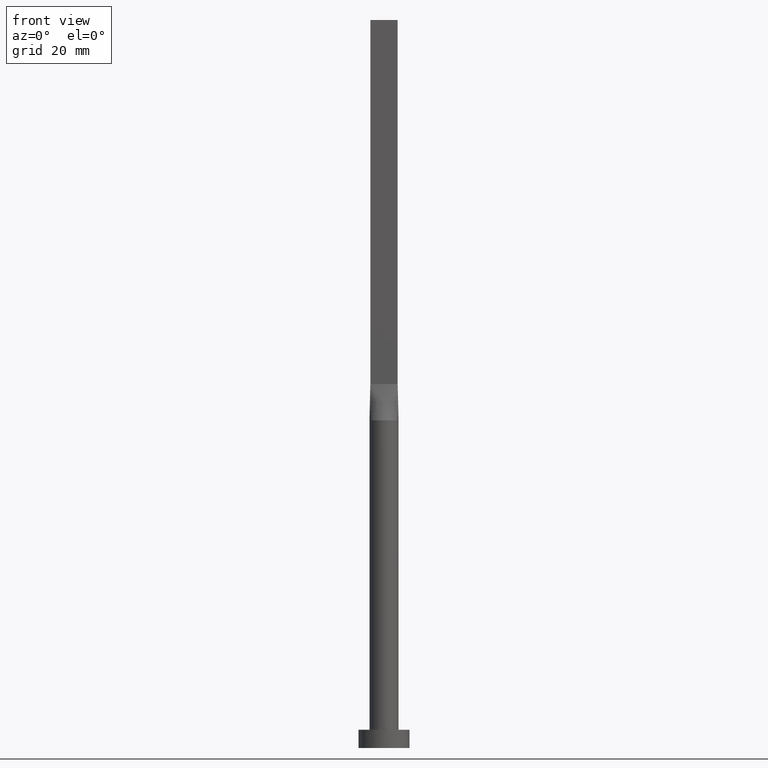
[diagram: clean part render]
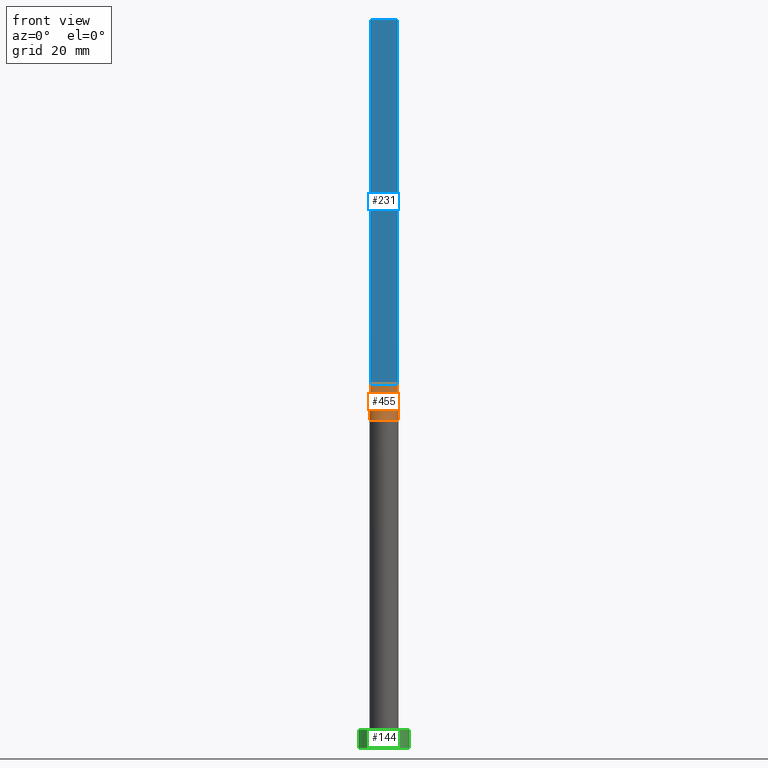
[diagram: same view with three faces highlighted in distinct colors, each labeled with its STEP entity id]
A machine part, front view with three faces highlighted in distinct colors.
Their STEP definitions:

[orange] entity #455 — the highlighted face is a freeform B-spline surface patch.
#1 = CARTESIAN_POINT ( 'NONE',  ( 1.562500000000001332, -0.9999999999999995559, 100.0000000000000000 ) ) ;
#5 = CARTESIAN_POINT ( 'NONE',  ( -0.6249999999999982236, -0.9999999999999993339, 100.0000000000000142 ) ) ;
#8 = CARTESIAN_POINT ( 'NONE',  ( 3.865244591400370577, -1.030732999276501527, 90.00000000000001421 ) ) ;
#28 = LINE ( 'NONE', #290, #60 ) ;
#40 = CIRCLE ( 'NONE', #415, 4.000000000000000000 ) ;
#42 = VERTEX_POINT ( 'NONE', #354 ) ;
#43 = CARTESIAN_POINT ( 'NONE',  ( -3.864939758404985604, -1.030650602241328206, 90.00000000000001421 ) ) ;
#45 = CARTESIAN_POINT ( 'NONE',  ( 1.250000000000001554, -0.9999999999999995559, 100.0000000000000000 ) ) ;
#54 = ORIENTED_EDGE ( 'NONE', *, *, #250, .T. ) ;
#60 = VECTOR ( 'NONE', #468, 1000.000000000000114 ) ;
#64 = VERTEX_POINT ( 'NONE', #8 ) ;
#68 = LINE ( 'NONE', #245, #480 ) ;
#69 = LINE ( 'NONE', #378, #305 ) ;
#83 = CARTESIAN_POINT ( 'NONE',  ( -2.499999999999998668, -0.9999999999999991118, 100.0000000000000000 ) ) ;
#87 = CARTESIAN_POINT ( 'NONE',  ( -3.750000000000000000, -0.9999999999999991118, 100.0000000000000000 ) ) ;
#96 = CARTESIAN_POINT ( 'NONE',  ( -0.3124999999999982236, -0.9999999999999993339, 100.0000000000000142 ) ) ;
#106 = B_SPLINE_SURFACE_WITH_KNOTS ( 'NONE', 3, 1, ( 
 ( #43, #87 ),
 ( #217, #488 ),
 ( #259, #388 ),
 ( #353, #83 ),
 ( #437, #529 ),
 ( #170, #127 ),
 ( #350, #124 ),
 ( #499, #5 ),
 ( #363, #96 ),
 ( #275, #411 ),
 ( #184, #460 ),
 ( #272, #45 ),
 ( #453, #1 ),
 ( #278, #539 ),
 ( #143, #413 ),
 ( #544, #321 ),
 ( #457, #402 ),
 ( #450, #181 ) ),
 .UNSPECIFIED., .F., .F., .F.,
 ( 4, 2, 2, 2, 2, 2, 2, 2, 4 ),
 ( 2, 2 ),
 ( 0.000000000000000000, 0.1250000000000000000, 0.2500000000000000000, 0.3750000000000000000, 0.5000000000000000000, 0.6250000000000000000, 0.7500000000000000000, 0.8750000000000000000, 1.000000000000000000 ),
 ( 0.000000000000000000, 1.000000000000000000 ),
 .UNSPECIFIED. ) ;
#124 = CARTESIAN_POINT ( 'NONE',  ( -1.249999999999998446, -0.9999999999999993339, 100.0000000000000142 ) ) ;
#127 = CARTESIAN_POINT ( 'NONE',  ( -1.562499999999998890, -0.9999999999999993339, 100.0000000000000142 ) ) ;
#143 = CARTESIAN_POINT ( 'NONE',  ( 3.267840578657194239, -2.338604872288699177, 90.00000000000000000 ) ) ;
#155 = CARTESIAN_POINT ( 'NONE',  ( 3.750000000000000000, -0.9999999999999997780, 100.0000000000000000 ) ) ;
#170 = CARTESIAN_POINT ( 'NONE',  ( -2.346407003458402141, -3.270103945996943651, 89.99999999999998579 ) ) ;
#180 = VERTEX_POINT ( 'NONE', #560 ) ;
#181 = CARTESIAN_POINT ( 'NONE',  ( 3.750000000000000000, -0.9999999999999997780, 100.0000000000000000 ) ) ;
#184 = CARTESIAN_POINT ( 'NONE',  ( 1.023074425454087555, -3.898373771260455811, 90.00000000000001421 ) ) ;
#187 = DIRECTION ( 'NONE',  ( 1.000000000000000000, 0.000000000000000000, 0.000000000000000000 ) ) ;
#197 = EDGE_LOOP ( 'NONE', ( #310, #362, #260, #54 ) ) ;
#217 = CARTESIAN_POINT ( 'NONE',  ( -3.781952206537765981, -1.341853921743402900, 89.99999999999998579 ) ) ;
#245 = CARTESIAN_POINT ( 'NONE',  ( -3.750000000000000000, -0.9999999999999991118, 100.0000000000000000 ) ) ;
#247 = DIRECTION ( 'NONE',  ( -0.01149316269309400701, -0.003064843384825017159, -0.9999292544707033548 ) ) ;
#248 = VERTEX_POINT ( 'NONE', #155 ) ;
#250 = EDGE_CURVE ( 'NONE', #180, #42, #69, .T. ) ;
#259 = CARTESIAN_POINT ( 'NONE',  ( -3.653499896451231521, -1.673258289339057514, 90.00000000000001421 ) ) ;
#260 = ORIENTED_EDGE ( 'NONE', *, *, #301, .F. ) ;
#272 = CARTESIAN_POINT ( 'NONE',  ( 1.940702937457743360, -3.532374760555930582, 90.00000000000001421 ) ) ;
#274 = EDGE_CURVE ( 'NONE', #64, #248, #28, .T. ) ;
#275 = CARTESIAN_POINT ( 'NONE',  ( 0.5121855420560003092, -3.999999999999999112, 90.00000000000001421 ) ) ;
#278 = CARTESIAN_POINT ( 'NONE',  ( 3.009488128496036641, -2.672487015486668671, 90.00000000000001421 ) ) ;
#290 = CARTESIAN_POINT ( 'NONE',  ( 3.807469879202492802, -1.015325301120664214, 95.00000000000000000 ) ) ;
#301 = EDGE_CURVE ( 'NONE', #180, #248, #68, .T. ) ;
#305 = VECTOR ( 'NONE', #247, 1000.000000000000114 ) ;
#310 = ORIENTED_EDGE ( 'NONE', *, *, #473, .T. ) ;
#321 = CARTESIAN_POINT ( 'NONE',  ( 3.125000000000000444, -0.9999999999999995559, 100.0000000000000000 ) ) ;
#324 = DIRECTION ( 'NONE',  ( 0.000000000000000000, 0.000000000000000000, 1.000000000000000000 ) ) ;
#350 = CARTESIAN_POINT ( 'NONE',  ( -1.940702937457744692, -3.532374760555929250, 90.00000000000001421 ) ) ;
#353 = CARTESIAN_POINT ( 'NONE',  ( -3.267840578657194239, -2.338604872288696956, 89.99999999999998579 ) ) ;
#354 = CARTESIAN_POINT ( 'NONE',  ( -3.865220763612065902, -1.030726602927787949, 90.00000000000001421 ) ) ;
#362 = ORIENTED_EDGE ( 'NONE', *, *, #274, .T. ) ;
#363 = CARTESIAN_POINT ( 'NONE',  ( -0.5121855420560018635, -4.000000000000000000, 90.00000000000002842 ) ) ;
#378 = CARTESIAN_POINT ( 'NONE',  ( -3.807469879202492802, -1.015325301120663548, 95.00000000000000000 ) ) ;
#388 = CARTESIAN_POINT ( 'NONE',  ( -3.124999999999999112, -0.9999999999999991118, 100.0000000000000000 ) ) ;
#402 = CARTESIAN_POINT ( 'NONE',  ( 3.437500000000000444, -0.9999999999999995559, 100.0000000000000000 ) ) ;
#407 = CARTESIAN_POINT ( 'NONE',  ( 0.000000000000000000, 0.000000000000000000, 90.00000000000001421 ) ) ;
#411 = CARTESIAN_POINT ( 'NONE',  ( 0.3125000000000018319, -0.9999999999999995559, 100.0000000000000142 ) ) ;
#413 = CARTESIAN_POINT ( 'NONE',  ( 2.500000000000000888, -0.9999999999999995559, 100.0000000000000000 ) ) ;
#415 = AXIS2_PLACEMENT_3D ( 'NONE', #407, #324, #187 ) ;
#426 = DIRECTION ( 'NONE',  ( 1.000000000000000000, -8.673617379884035472E-17, 0.000000000000000000 ) ) ;
#434 = FACE_OUTER_BOUND ( 'NONE', #197, .T. ) ;
#437 = CARTESIAN_POINT ( 'NONE',  ( -3.009488128496037529, -2.672487015486668227, 90.00000000000000000 ) ) ;
#450 = CARTESIAN_POINT ( 'NONE',  ( 3.864939758404985604, -1.030650602241328873, 90.00000000000001421 ) ) ;
#453 = CARTESIAN_POINT ( 'NONE',  ( 2.346407003458400364, -3.270103945996944095, 90.00000000000000000 ) ) ;
#455 = ADVANCED_FACE ( 'NONE', ( #434 ), #106, .T. ) ;
#457 = CARTESIAN_POINT ( 'NONE',  ( 3.781952206537765981, -1.341853921743404232, 90.00000000000001421 ) ) ;
#460 = CARTESIAN_POINT ( 'NONE',  ( 0.6250000000000017764, -0.9999999999999995559, 100.0000000000000000 ) ) ;
#468 = DIRECTION ( 'NONE',  ( -0.01149316269309400701, 0.003064843384825017159, 0.9999292544707033548 ) ) ;
#473 = EDGE_CURVE ( 'NONE', #42, #64, #40, .T. ) ;
#480 = VECTOR ( 'NONE', #426, 1000.000000000000000 ) ;
#488 = CARTESIAN_POINT ( 'NONE',  ( -3.437499999999999556, -0.9999999999999991118, 100.0000000000000000 ) ) ;
#499 = CARTESIAN_POINT ( 'NONE',  ( -1.023074425454088887, -3.898373771260456255, 90.00000000000001421 ) ) ;
#529 = CARTESIAN_POINT ( 'NONE',  ( -2.187499999999999112, -0.9999999999999993339, 100.0000000000000000 ) ) ;
#539 = CARTESIAN_POINT ( 'NONE',  ( 2.187500000000000888, -0.9999999999999995559, 100.0000000000000000 ) ) ;
#544 = CARTESIAN_POINT ( 'NONE',  ( 3.653499896451230633, -1.673258289339059068, 90.00000000000001421 ) ) ;
#560 = CARTESIAN_POINT ( 'NONE',  ( -3.750000000000000000, -0.9999999999999991118, 100.0000000000000000 ) ) ;

[blue] entity #231 — the highlighted planar face has unit normal (0, 1, -0).
#23 = DIRECTION ( 'NONE',  ( -0.000000000000000000, -0.000000000000000000, -1.000000000000000000 ) ) ;
#26 = DIRECTION ( 'NONE',  ( 8.673617379884035472E-17, 1.000000000000000000, -0.000000000000000000 ) ) ;
#44 = ORIENTED_EDGE ( 'NONE', *, *, #261, .T. ) ;
#68 = LINE ( 'NONE', #245, #480 ) ;
#84 = EDGE_LOOP ( 'NONE', ( #416, #119, #171, #44 ) ) ;
#105 = VECTOR ( 'NONE', #563, 1000.000000000000000 ) ;
#116 = VECTOR ( 'NONE', #346, 1000.000000000000000 ) ;
#119 = ORIENTED_EDGE ( 'NONE', *, *, #558, .F. ) ;
#155 = CARTESIAN_POINT ( 'NONE',  ( 3.750000000000000000, -0.9999999999999997780, 100.0000000000000000 ) ) ;
#171 = ORIENTED_EDGE ( 'NONE', *, *, #333, .F. ) ;
#180 = VERTEX_POINT ( 'NONE', #560 ) ;
#206 = LINE ( 'NONE', #239, #471 ) ;
#231 = ADVANCED_FACE ( 'NONE', ( #508 ), #330, .F. ) ;
#239 = CARTESIAN_POINT ( 'NONE',  ( -3.750000000000000000, -0.9999999999999991118, 200.0000000000000000 ) ) ;
#245 = CARTESIAN_POINT ( 'NONE',  ( -3.750000000000000000, -0.9999999999999991118, 100.0000000000000000 ) ) ;
#248 = VERTEX_POINT ( 'NONE', #155 ) ;
#261 = EDGE_CURVE ( 'NONE', #549, #180, #206, .T. ) ;
#301 = EDGE_CURVE ( 'NONE', #180, #248, #68, .T. ) ;
#330 = PLANE ( 'NONE',  #379 ) ;
#333 = EDGE_CURVE ( 'NONE', #549, #403, #390, .T. ) ;
#346 = DIRECTION ( 'NONE',  ( 1.000000000000000000, -8.673617379884035472E-17, 0.000000000000000000 ) ) ;
#375 = CARTESIAN_POINT ( 'NONE',  ( -3.750000000000000000, -0.9999999999999991118, 200.0000000000000000 ) ) ;
#379 = AXIS2_PLACEMENT_3D ( 'NONE', #562, #26, #512 ) ;
#390 = LINE ( 'NONE', #482, #116 ) ;
#403 = VERTEX_POINT ( 'NONE', #533 ) ;
#416 = ORIENTED_EDGE ( 'NONE', *, *, #301, .T. ) ;
#422 = CARTESIAN_POINT ( 'NONE',  ( 3.750000000000000000, -0.9999999999999997780, 200.0000000000000000 ) ) ;
#426 = DIRECTION ( 'NONE',  ( 1.000000000000000000, -8.673617379884035472E-17, 0.000000000000000000 ) ) ;
#471 = VECTOR ( 'NONE', #23, 1000.000000000000000 ) ;
#480 = VECTOR ( 'NONE', #426, 1000.000000000000000 ) ;
#482 = CARTESIAN_POINT ( 'NONE',  ( -3.750000000000000000, -0.9999999999999991118, 200.0000000000000000 ) ) ;
#508 = FACE_OUTER_BOUND ( 'NONE', #84, .T. ) ;
#511 = LINE ( 'NONE', #422, #105 ) ;
#512 = DIRECTION ( 'NONE',  ( -1.000000000000000000, 8.673617379884035472E-17, 0.000000000000000000 ) ) ;
#533 = CARTESIAN_POINT ( 'NONE',  ( 3.750000000000000000, -0.9999999999999997780, 200.0000000000000000 ) ) ;
#549 = VERTEX_POINT ( 'NONE', #375 ) ;
#558 = EDGE_CURVE ( 'NONE', #403, #248, #511, .T. ) ;
#560 = CARTESIAN_POINT ( 'NONE',  ( -3.750000000000000000, -0.9999999999999991118, 100.0000000000000000 ) ) ;
#562 = CARTESIAN_POINT ( 'NONE',  ( -3.750000000000000000, -0.9999999999999991118, 200.0000000000000000 ) ) ;
#563 = DIRECTION ( 'NONE',  ( -0.000000000000000000, -0.000000000000000000, -1.000000000000000000 ) ) ;

[green] entity #144 — the highlighted cylindrical surface (edge-blend (fillet) strip) has radius 7 mm, axis along (-0, -0, -1).
#22 = DIRECTION ( 'NONE',  ( -0.000000000000000000, -0.000000000000000000, -1.000000000000000000 ) ) ;
#41 = DIRECTION ( 'NONE',  ( 0.000000000000000000, 0.000000000000000000, 1.000000000000000000 ) ) ;
#48 = AXIS2_PLACEMENT_3D ( 'NONE', #313, #41, #311 ) ;
#62 = VERTEX_POINT ( 'NONE', #501 ) ;
#63 = DIRECTION ( 'NONE',  ( -1.000000000000000000, 0.000000000000000000, 0.000000000000000000 ) ) ;
#103 = EDGE_LOOP ( 'NONE', ( #579, #371, #534, #288 ) ) ;
#107 = DIRECTION ( 'NONE',  ( 0.000000000000000000, 0.000000000000000000, 1.000000000000000000 ) ) ;
#117 = CARTESIAN_POINT ( 'NONE',  ( -7.000000000000000000, 0.000000000000000000, 5.000000000000000000 ) ) ;
#136 = VECTOR ( 'NONE', #22, 1000.000000000000000 ) ;
#142 = AXIS2_PLACEMENT_3D ( 'NONE', #336, #107, #339 ) ;
#144 = ADVANCED_FACE ( 'NONE', ( #296 ), #464, .T. ) ;
#160 = DIRECTION ( 'NONE',  ( -0.000000000000000000, -0.000000000000000000, -1.000000000000000000 ) ) ;
#163 = EDGE_CURVE ( 'NONE', #254, #479, #550, .T. ) ;
#215 = CIRCLE ( 'NONE', #48, 7.000000000000000000 ) ;
#227 = EDGE_CURVE ( 'NONE', #504, #479, #287, .T. ) ;
#254 = VERTEX_POINT ( 'NONE', #515 ) ;
#287 = LINE ( 'NONE', #556, #500 ) ;
#288 = ORIENTED_EDGE ( 'NONE', *, *, #163, .T. ) ;
#292 = AXIS2_PLACEMENT_3D ( 'NONE', #470, #472, #63 ) ;
#296 = FACE_OUTER_BOUND ( 'NONE', #103, .T. ) ;
#298 = LINE ( 'NONE', #117, #136 ) ;
#311 = DIRECTION ( 'NONE',  ( 1.000000000000000000, 0.000000000000000000, 0.000000000000000000 ) ) ;
#313 = CARTESIAN_POINT ( 'NONE',  ( 0.000000000000000000, 0.000000000000000000, 5.000000000000000000 ) ) ;
#336 = CARTESIAN_POINT ( 'NONE',  ( 0.000000000000000000, 0.000000000000000000, 0.000000000000000000 ) ) ;
#339 = DIRECTION ( 'NONE',  ( 1.000000000000000000, 0.000000000000000000, 0.000000000000000000 ) ) ;
#365 = CARTESIAN_POINT ( 'NONE',  ( 7.000000000000000000, 8.572527594031473190E-16, 0.000000000000000000 ) ) ;
#371 = ORIENTED_EDGE ( 'NONE', *, *, #410, .F. ) ;
#410 = EDGE_CURVE ( 'NONE', #62, #504, #215, .T. ) ;
#464 = CYLINDRICAL_SURFACE ( 'NONE', #292, 7.000000000000000000 ) ;
#470 = CARTESIAN_POINT ( 'NONE',  ( 0.000000000000000000, 0.000000000000000000, 5.000000000000000000 ) ) ;
#472 = DIRECTION ( 'NONE',  ( -0.000000000000000000, -0.000000000000000000, -1.000000000000000000 ) ) ;
#479 = VERTEX_POINT ( 'NONE', #365 ) ;
#494 = CARTESIAN_POINT ( 'NONE',  ( 7.000000000000000000, 8.572527594031473190E-16, 5.000000000000000000 ) ) ;
#500 = VECTOR ( 'NONE', #160, 1000.000000000000000 ) ;
#501 = CARTESIAN_POINT ( 'NONE',  ( -7.000000000000000000, 0.000000000000000000, 5.000000000000000000 ) ) ;
#504 = VERTEX_POINT ( 'NONE', #494 ) ;
#515 = CARTESIAN_POINT ( 'NONE',  ( -7.000000000000000000, 0.000000000000000000, 0.000000000000000000 ) ) ;
#534 = ORIENTED_EDGE ( 'NONE', *, *, #561, .T. ) ;
#550 = CIRCLE ( 'NONE', #142, 7.000000000000000000 ) ;
#556 = CARTESIAN_POINT ( 'NONE',  ( 7.000000000000000000, 8.572527594031473190E-16, 5.000000000000000000 ) ) ;
#561 = EDGE_CURVE ( 'NONE', #62, #254, #298, .T. ) ;
#579 = ORIENTED_EDGE ( 'NONE', *, *, #227, .F. ) ;